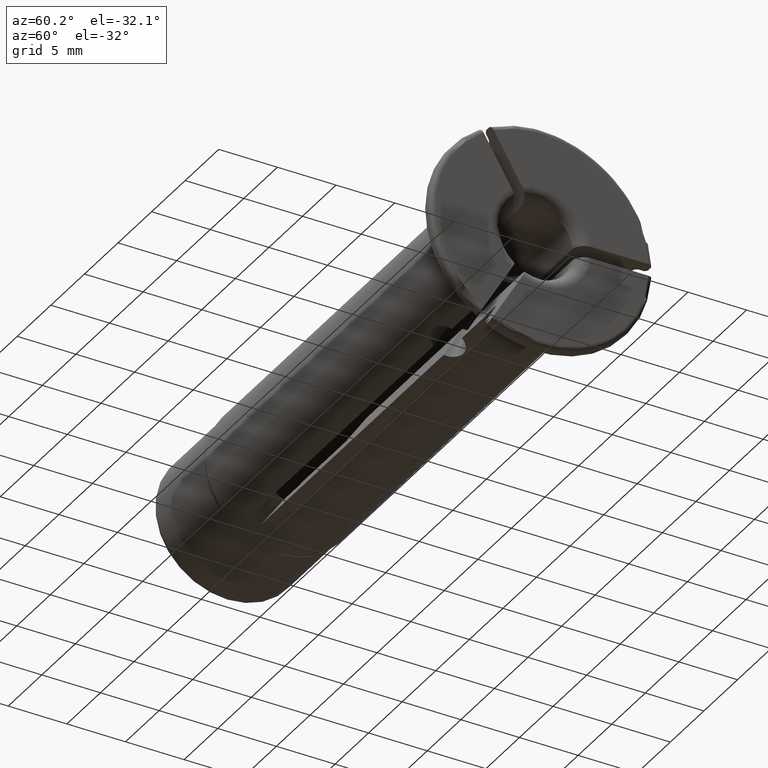
[diagram: clean part render]
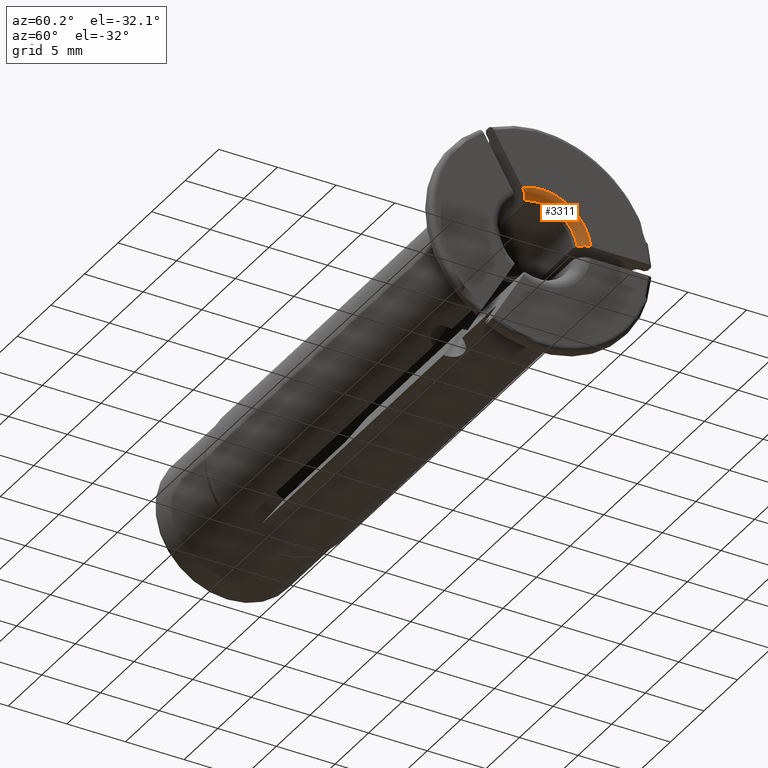
[diagram: same view with one face highlighted and labeled with its STEP entity id]
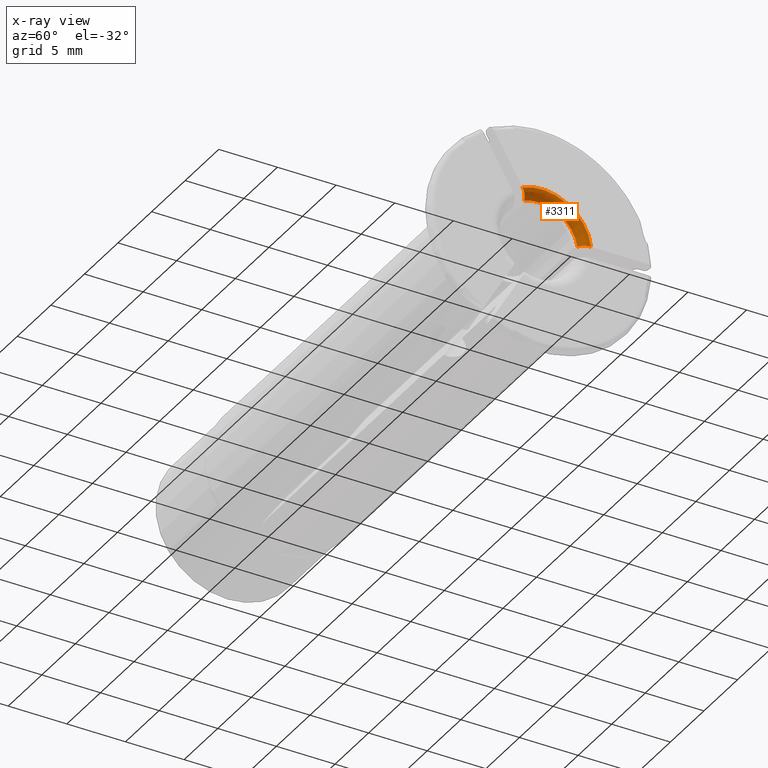
[diagram: x-ray of the same camera — body ghosted, the highlighted face saturated]
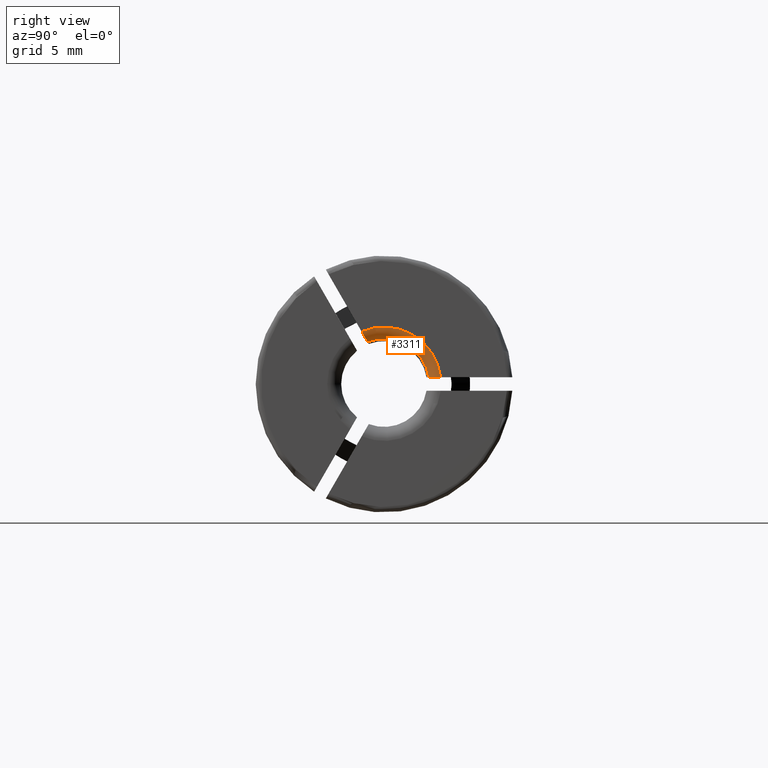
[diagram: same view with one face highlighted and labeled with its STEP entity id]
A machine part, auxiliary view. The second image highlights one B-rep face of the part: STEP entity #3311.
The next image is the same camera in x-ray: the body ghosted, the highlighted face saturated — about 0% of this face is hidden behind the body in this view.
A second angle (right view) of the same face is appended — the face is thin or edge-on in the first view.
In plain terms, the highlighted toroidal blend (fillet) surface has major radius 4.2143 mm and minor (blend) radius 1 mm.
Its self-contained STEP definition (entity closure, byte-faithful):
#1404=CARTESIAN_POINT('',(2.E0,-1.659229237474E0,3.873869340708E0));
#1405=CARTESIAN_POINT('',(2.E0,-1.633942451007E0,3.830071341787E0));
#1406=CARTESIAN_POINT('',(1.992523893717E0,-1.584002044356E0,3.743572020118E0));
#1407=CARTESIAN_POINT('',(1.959236316456E0,-1.510313404987E0,3.615939552789E0));
#1408=CARTESIAN_POINT('',(1.904453008831E0,-1.439878950558E0,3.493943499116E0));
#1409=CARTESIAN_POINT('',(1.829512755047E0,-1.374343469106E0,3.380432715542E0));
#1410=CARTESIAN_POINT('',(1.736093984200E0,-1.315124948136E0,3.277863228473E0));
#1411=CARTESIAN_POINT('',(1.625822558774E0,-1.263429385859E0,3.188323888084E0));
#1412=CARTESIAN_POINT('',(1.543567421180E0,-1.235047333214E0,3.139164730879E0));
#1413=CARTESIAN_POINT('',(1.5E0,-1.222327878571E0,3.117133989193E0));
#1415=CARTESIAN_POINT('',(2.E0,0.E0,0.E0));
#1416=DIRECTION('',(-1.E0,0.E0,0.E0));
#1417=DIRECTION('',(0.E0,-3.937187237322E-1,9.192309647649E-1));
#1418=AXIS2_PLACEMENT_3D('',#1415,#1416,#1417);
#1420=CARTESIAN_POINT('',(1.5E0,3.310681160927E0,5.E-1));
#1421=CARTESIAN_POINT('',(1.543588892575E0,3.336132607306E0,5.E-1));
#1422=CARTESIAN_POINT('',(1.625887681615E0,3.392929329763E0,5.E-1));
#1423=CARTESIAN_POINT('',(1.736244553195E0,3.496429670592E0,5.E-1));
#1424=CARTESIAN_POINT('',(1.829688654073E0,3.614968620272E0,5.E-1));
#1425=CARTESIAN_POINT('',(1.904583904970E0,3.746063919415E0,5.E-1));
#1426=CARTESIAN_POINT('',(1.959292295836E0,3.886857866387E0,5.E-1));
#1427=CARTESIAN_POINT('',(1.992529795164E0,4.034106886861E0,5.E-1));
#1428=CARTESIAN_POINT('',(2.E0,4.133934487870E0,5.E-1));
#1429=CARTESIAN_POINT('',(2.E0,4.184483878732E0,5.E-1));
#1431=CARTESIAN_POINT('',(1.5E0,0.E0,0.E0));
#1432=DIRECTION('',(1.E0,0.E0,0.E0));
#1433=DIRECTION('',(0.E0,9.887869823601E-1,1.493328614712E-1));
#1434=AXIS2_PLACEMENT_3D('',#1431,#1432,#1433);
#1505=CARTESIAN_POINT('',(1.5E0,-1.222327878571E0,3.117133989193E0));
#1507=CARTESIAN_POINT('',(1.5E0,3.310681160927E0,5.E-1));
#1741=CARTESIAN_POINT('',(2.E0,4.184483878732E0,5.E-1));
#1743=VERTEX_POINT('',#1741);
#1814=VERTEX_POINT('',#1507);
#1846=CARTESIAN_POINT('',(2.E0,-1.659229237474E0,3.873869340708E0));
#1848=VERTEX_POINT('',#1846);
#1913=VERTEX_POINT('',#1505);
#3299=CARTESIAN_POINT('',(1.E0,0.E0,0.E0));
#3300=DIRECTION('',(1.E0,0.E0,0.E0));
#3301=DIRECTION('',(0.E0,3.471705030528E-2,-9.993971815140E-1));
#3302=AXIS2_PLACEMENT_3D('',#3299,#3300,#3301);
#3303=TOROIDAL_SURFACE('',#3302,4.214250269190E0,1.E0);
#3304=ORIENTED_EDGE('',*,*,#2144,.F.);
#3305=ORIENTED_EDGE('',*,*,#2661,.T.);
#3306=ORIENTED_EDGE('',*,*,#3187,.F.);
#3308=ORIENTED_EDGE('',*,*,#3307,.T.);
#3309=EDGE_LOOP('',(#3304,#3305,#3306,#3308));
#3310=FACE_OUTER_BOUND('',#3309,.F.);
#3311=ADVANCED_FACE('',(#3310),#3303,.T.);
#1414=B_SPLINE_CURVE_WITH_KNOTS('',3,(#1404,#1405,#1406,#1407,#1408,#1409,#1410,
#1411,#1412,#1413),.UNSPECIFIED.,.F.,.F.,(4,1,1,1,1,1,1,4),(0.E0,
1.428571428571E-1,2.857142857143E-1,4.285714285714E-1,5.714285714286E-1,
7.142857142857E-1,8.571428571429E-1,1.E0),.UNSPECIFIED.);
#1419=CIRCLE('',#1418,4.214250269190E0);
#1430=B_SPLINE_CURVE_WITH_KNOTS('',3,(#1420,#1421,#1422,#1423,#1424,#1425,#1426,
#1427,#1428,#1429),.UNSPECIFIED.,.F.,.F.,(4,1,1,1,1,1,1,4),(0.E0,
1.428571428571E-1,2.857142857143E-1,4.285714285714E-1,5.714285714286E-1,
7.142857142857E-1,8.571428571429E-1,1.E0),.UNSPECIFIED.);
#1435=CIRCLE('',#1434,3.348224865405E0);
#2144=EDGE_CURVE('',#1848,#1913,#1414,.T.);
#2661=EDGE_CURVE('',#1848,#1743,#1419,.T.);
#3187=EDGE_CURVE('',#1814,#1743,#1430,.T.);
#3307=EDGE_CURVE('',#1814,#1913,#1435,.T.);